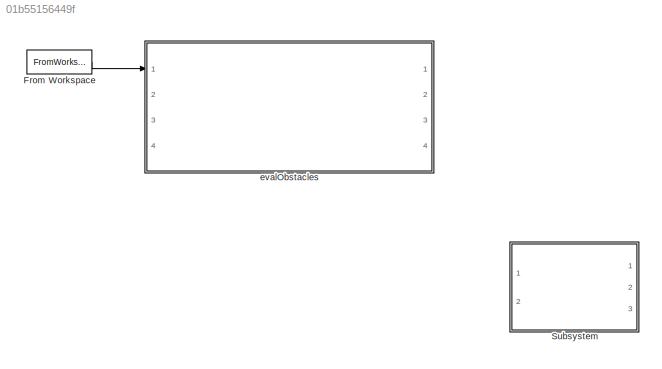
MODEL slx_01b55156449f
KIND model
BLOCK [FromWorkspace] From Workspace
  SampleTime = 0
  VariableName = map
  ZeroCross = on
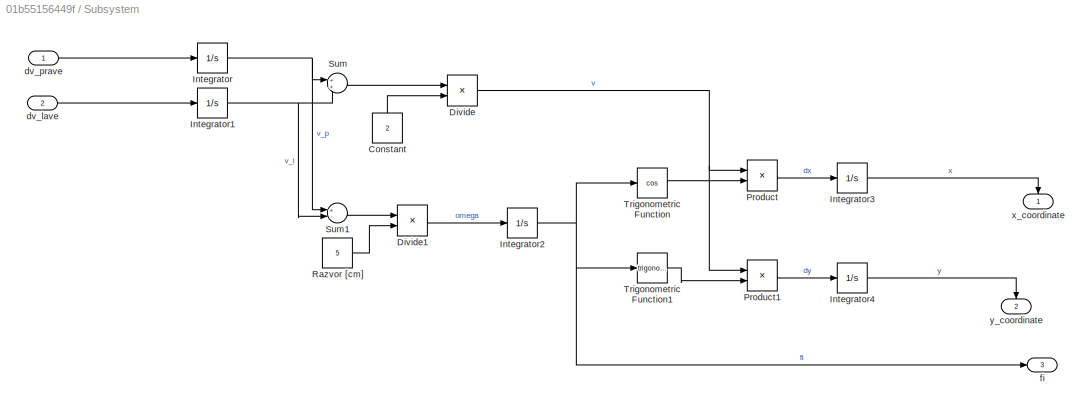
BLOCK [SubSystem] Subsystem
  FunctionWithSeparateData = off
  MaskHideContents = off
  MinAlgLoopOccurrences = off
  Opaque = off
  Ports = [2, 3]
  PropExecContextOutsideSubsystem = off
  RTWSystemCode = Auto
  RequestExecContextInheritance = off
BLOCK [Constant] Subsystem/Constant
  Value = 2
BLOCK [Product] Subsystem/Divide
  InputSameDT = off
  Inputs = */
  OutDataTypeStr = Inherit: Inherit via internal rule
  Ports = [2, 1]
  RndMeth = Floor
  SaturateOnIntegerOverflow = off
BLOCK [Product] Subsystem/Divide1
  InputSameDT = off
  Inputs = */
  OutDataTypeStr = Inherit: Inherit via internal rule
  Ports = [2, 1]
  RndMeth = Floor
  SaturateOnIntegerOverflow = off
BLOCK [Integrator] Subsystem/Integrator
  Ports = [1, 1]
BLOCK [Integrator] Subsystem/Integrator1
  Ports = [1, 1]
BLOCK [Integrator] Subsystem/Integrator2
  Ports = [1, 1]
BLOCK [Integrator] Subsystem/Integrator3
  Ports = [1, 1]
BLOCK [Integrator] Subsystem/Integrator4
  Ports = [1, 1]
BLOCK [Product] Subsystem/Product
  InputSameDT = off
  OutDataTypeStr = Inherit: Inherit via internal rule
  Ports = [2, 1]
  RndMeth = Floor
  SaturateOnIntegerOverflow = off
BLOCK [Product] Subsystem/Product1
  InputSameDT = off
  OutDataTypeStr = Inherit: Inherit via internal rule
  Ports = [2, 1]
  RndMeth = Floor
  SaturateOnIntegerOverflow = off
BLOCK [Constant] Subsystem/Razvor [cm]
  Value = 5
BLOCK [Sum] Subsystem/Sum
  IconShape = round
  InputSameDT = off
  OutDataTypeStr = Inherit: Inherit via internal rule
  Ports = [2, 1]
  SaturateOnIntegerOverflow = off
BLOCK [Sum] Subsystem/Sum1
  InputSameDT = off
  Inputs = +-
  OutDataTypeStr = Inherit: Inherit via internal rule
  Ports = [2, 1]
  SaturateOnIntegerOverflow = off
BLOCK [Trigonometry] Subsystem/Trigonometric Function
  Operator = cos
  Ports = [1, 1]
BLOCK [Trigonometry] Subsystem/Trigonometric Function1
  Ports = [1, 1]
BLOCK [Inport] Subsystem/dv_lave
  IconDisplay = Port number
  Port = 2
BLOCK [Inport] Subsystem/dv_prave
  IconDisplay = Port number
BLOCK [Outport] Subsystem/fi 
  IconDisplay = Port number
  Port = 3
BLOCK [Outport] Subsystem/x_coordinate
  IconDisplay = Port number
BLOCK [Outport] Subsystem/y_coordinate
  IconDisplay = Port number
  Port = 2
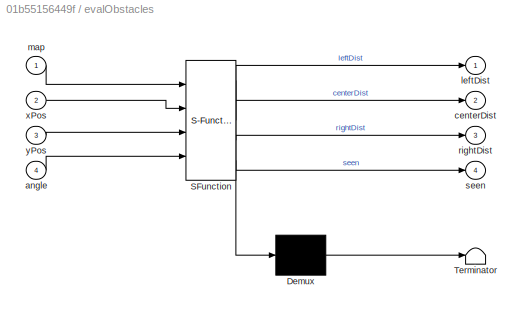
BLOCK [SubSystem] evalObstacles 
  ErrorFcn = Stateflow.Translate.translate
  FunctionWithSeparateData = off
  MaskHideContents = off
  MinAlgLoopOccurrences = off
  Opaque = off
  PermitHierarchicalResolution = ExplicitOnly
  Ports = [4, 4]
  PropExecContextOutsideSubsystem = off
  RTWSystemCode = Auto
  RequestExecContextInheritance = off
  SFBlockType = MATLAB Function
  TreatAsAtomicUnit = on
BLOCK [Demux] evalObstacles / Demux 
  Outputs = 1
  Ports = [1, 1]
BLOCK [S-Function] evalObstacles / SFunction 
  EnableBusSupport = off
  FunctionName = sf_sfun
  PortCounts = [4 5]
  Ports = [4, 5]
  Tag = Stateflow S-Function auticko 1
BLOCK [Terminator] evalObstacles / Terminator 
BLOCK [Inport] evalObstacles /angle
  IconDisplay = Port number
  Port = 4
BLOCK [Outport] evalObstacles /centerDist
  IconDisplay = Port number
  Port = 2
BLOCK [Outport] evalObstacles /leftDist
  IconDisplay = Port number
BLOCK [Inport] evalObstacles /map
  IconDisplay = Port number
BLOCK [Outport] evalObstacles /rightDist
  IconDisplay = Port number
  Port = 3
BLOCK [Outport] evalObstacles /seen
  IconDisplay = Port number
  Port = 4
BLOCK [Inport] evalObstacles /xPos
  IconDisplay = Port number
  Port = 2
BLOCK [Inport] evalObstacles /yPos
  IconDisplay = Port number
  Port = 3
LINE From Workspace:1 -> evalObstacles :1
LINE Subsystem/Constant:1 -> Subsystem/Divide:2
LINE Subsystem/Divide1:1 -> Subsystem/Integrator2:1
NET Subsystem/Divide:1 -> Subsystem/Product1:1, Subsystem/Product:1
NET Subsystem/Integrator1:1 -> Subsystem/Sum1:2, Subsystem/Sum:2
NET Subsystem/Integrator2:1 -> Subsystem/Trigonometric Function1:1, Subsystem/Trigonometric Function:1, Subsystem/fi :1
LINE Subsystem/Integrator3:1 -> Subsystem/x_coordinate:1
LINE Subsystem/Integrator4:1 -> Subsystem/y_coordinate:1
NET Subsystem/Integrator:1 -> Subsystem/Sum1:1, Subsystem/Sum:1
LINE Subsystem/Product1:1 -> Subsystem/Integrator4:1
LINE Subsystem/Product:1 -> Subsystem/Integrator3:1
LINE Subsystem/Razvor [cm]:1 -> Subsystem/Divide1:2
LINE Subsystem/Sum1:1 -> Subsystem/Divide1:1
LINE Subsystem/Sum:1 -> Subsystem/Divide:1
LINE Subsystem/Trigonometric Function1:1 -> Subsystem/Product1:2
LINE Subsystem/Trigonometric Function:1 -> Subsystem/Product:2
LINE Subsystem/dv_lave:1 -> Subsystem/Integrator1:1
LINE Subsystem/dv_prave:1 -> Subsystem/Integrator:1
note: NET lines group one-source signal fan-out (src -> all destinations, sorted); 1:1 wires keep LINE
